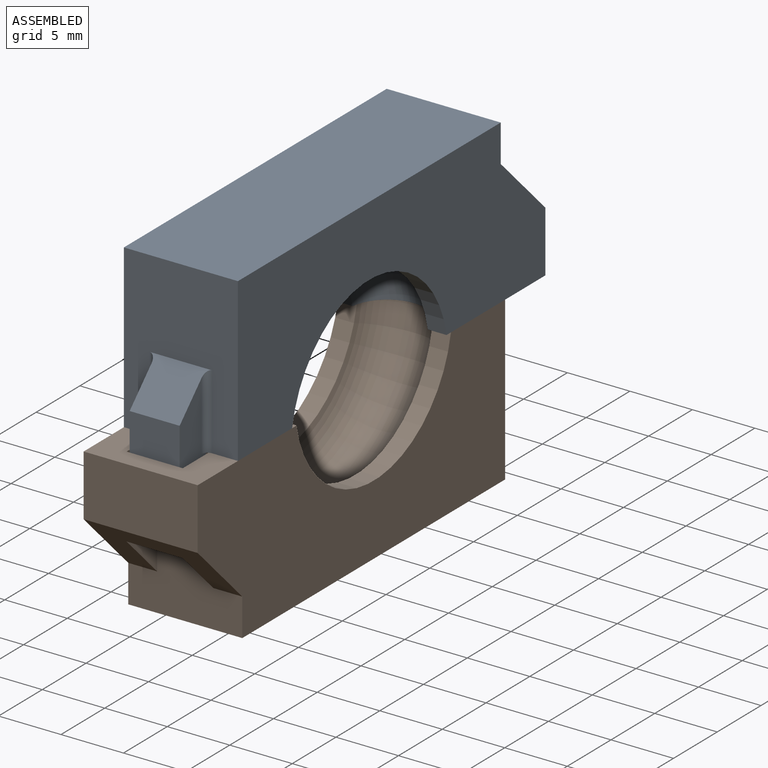
[diagram: assembled view]
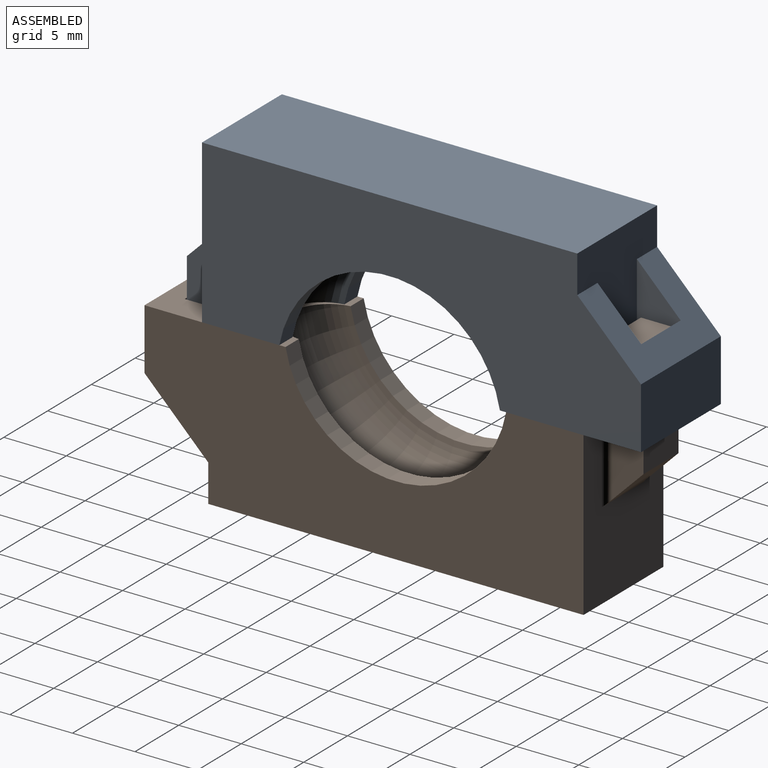
[diagram: assembled view, second angle]
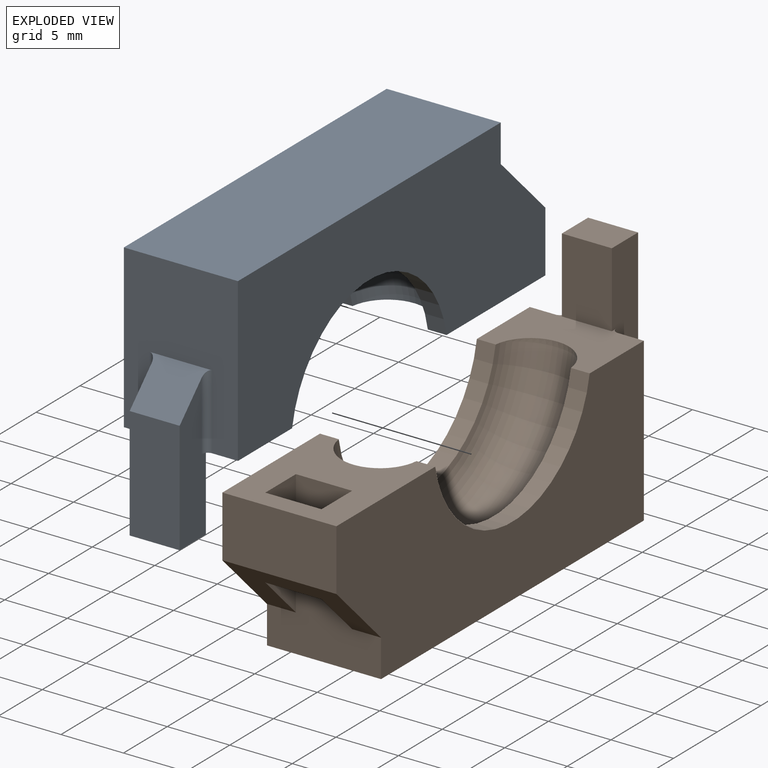
[diagram: exploded view]
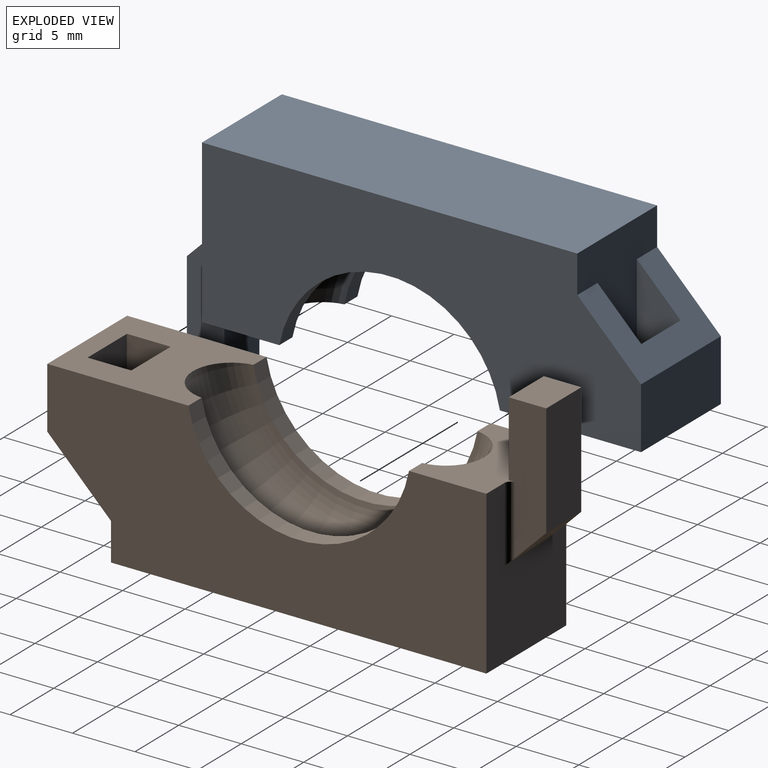
[diagram: exploded view, second angle]
ASSEMBLY  parts=2 mates=3
PART A: 23 faces, bbox 9.1x38.1x19 mm
  f0: cylinder r=8.97mm len=17.65mm, axis (-1,0,0), area 37.4mm2, adj f1,f4,f5,f6
  f1: torus R=8.68mm, axis (-1,0,0), area 275mm2, adj f0,f2,f5,f6
  f2: cylinder r=9.11mm len=17.93mm, axis (-1,0,0), area 38.1mm2, adj f1,f3,f5,f6
  f3: plane 35.13x13mm, normal (-1,0,0), area 327.2mm2, adj f2,f5,f6,f7,f8,f9,f19,f20
  f4: plane 35.13x13mm, normal (1,0,0), area 330.7mm2, adj f0,f5,f6,f7,f8,f9,f19,f20
  f5: plane 9.12x6.69mm, normal (0,0,1), area 43.1mm2, adj f0,f1,f2,f3,f4,f9,f10,f11
  f6: plane 11.29x9.12mm, normal (0,0,1), area 73.7mm2, adj f0,f1,f2,f3,f4,f7,f16,f17
  f7: plane 13x9.12mm, normal (0,-1,0), area 72.4mm2, adj f3,f4,f6,f8,f16,f18,f20
  f8: plane 30.03x9.12mm, normal (0,0,-1), area 274mm2, adj f3,f4,f7,f9
  f9: plane 13x9.12mm, normal (0,1,0), area 88.6mm2, adj f3,f4,f5,f8,f15,f21,f22
  f10: plane 6x4mm, normal (0,-1,0), area 24mm2, adj f5,f11,f13,f14
  f11: plane 11.5x3mm, normal (1,0,0), area 28.6mm2, adj f5,f10,f12,f14,f15,f21
  f12: plane 9x4mm, normal (0,1,0), area 36mm2, adj f11,f13,f14,f15
  f13: plane 11.5x3mm, normal (-1,0,0), area 28.6mm2, adj f5,f10,f12,f14,f15,f22
  f14: plane 4x3mm, normal (0,0,1), area 12mm2, adj f10,f11,f12,f13
  f15: plane 5x3mm, normal (0,0.71,-0.71), area 17.1mm2, adj f9,f11,f12,f13,f21,f22
  f16: plane 10x3.5mm, normal (-1,0,0), area 28.9mm2, adj f6,f7,f17,f20
  f17: plane 6.5x4.5mm, normal (0,1,0), area 29.2mm2, adj f6,f16,f18,f20
  f18: plane 10x3.5mm, normal (1,0,0), area 28.9mm2, adj f6,f7,f17,f20
  f19: plane 9.12x4.9mm, normal (0,-1,0), area 44.7mm2, adj f3,f4,f6,f20
  f20: plane 9.12x5.1mm, normal (0,-0.71,-0.71), area 43.5mm2, adj f3,f4,f7,f16,f17,f18,f19
  f21: cylinder r=0.5mm len=6mm, axis (0,0,-1), area 4.6mm2, adj f5,f9,f11,f15
  f22: cylinder r=0.5mm len=6mm, axis (0,0,-1), area 4.6mm2, adj f5,f9,f13,f15
PART B: same geometry as A
PLACE A rot(axis=(-1,0,0),180deg) t=(-15.32,-2.7,70.29)mm
PLACE B rot(axis=(0.18,0.62,0.76),0deg) t=(-15.32,-2.2,19.56)mm fixed
MATE planar A.f4 <-> B.f4  axis (1,0,0) through (-32.95,-0.71,52.13)mm
MATE planar B.f17 <-> A.f12  axis (0,1,0) through (-37.51,-20.71,41.67)mm
MATE planar A.f5 <-> B.f6  axis (0,0,-1) through (-37.49,-15.23,44.92)mm
